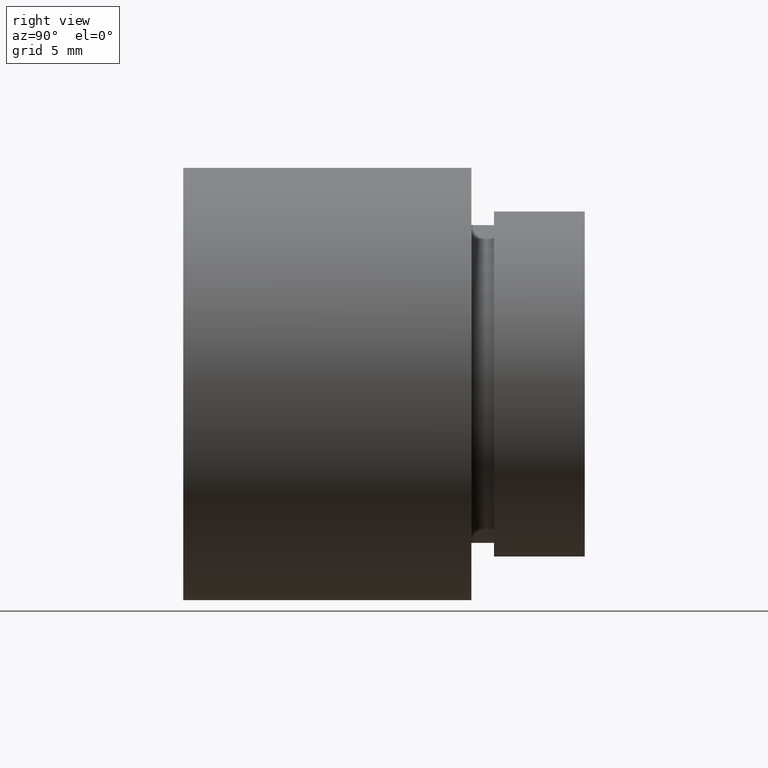
[diagram: clean part render]
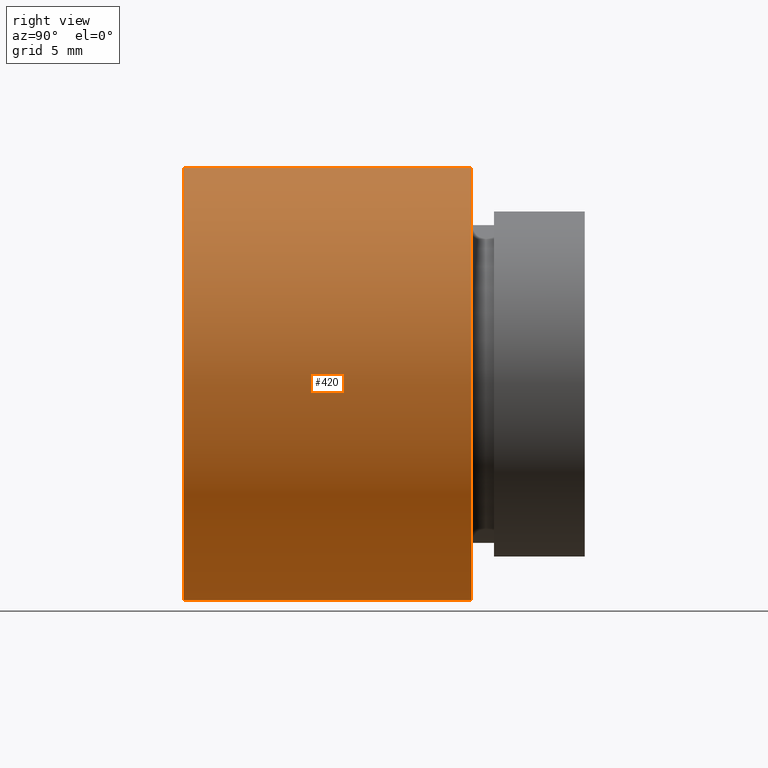
[diagram: same view with one face highlighted and labeled with its STEP entity id]
A machine part, right view. The second image highlights one B-rep face of the part: STEP entity #420.
In plain terms, the highlighted cylindrical surface (partial cylindrical patch) has radius 9.525 mm, axis along (-0, 1, -0).
Its self-contained STEP definition (entity closure, byte-faithful):
#33 = CIRCLE ( 'NONE', #156, 9.525000000000019900 ) ;
#43 = CARTESIAN_POINT ( 'NONE',  ( 0.0000000000000000000, 161.3761669434274500, 0.0000000000000000000 ) ) ;
#51 = DIRECTION ( 'NONE',  ( -0.0000000000000000000, 1.000000000000000000, -0.0000000000000000000 ) ) ;
#74 = FACE_OUTER_BOUND ( 'NONE', #496, .T. ) ;
#82 = CARTESIAN_POINT ( 'NONE',  ( 0.0000000000000000000, 12.69999999999998900, 9.525000000000019900 ) ) ;
#88 = CARTESIAN_POINT ( 'NONE',  ( 1.166476076187856400E-015, -2.775557561562891400E-014, -9.525000000000019900 ) ) ;
#101 = CARTESIAN_POINT ( 'NONE',  ( 1.166476076187856400E-015, 161.3761669434274500, -9.525000000000019900 ) ) ;
#105 = DIRECTION ( 'NONE',  ( 0.0000000000000000000, 0.0000000000000000000, 1.000000000000000000 ) ) ;
#142 = AXIS2_PLACEMENT_3D ( 'NONE', #551, #254, #605 ) ;
#144 = EDGE_CURVE ( 'NONE', #330, #282, #321, .T. ) ;
#147 = DIRECTION ( 'NONE',  ( -0.0000000000000000000, 1.000000000000000000, -0.0000000000000000000 ) ) ;
#154 = DIRECTION ( 'NONE',  ( -0.0000000000000000000, 1.000000000000000000, -0.0000000000000000000 ) ) ;
#156 = AXIS2_PLACEMENT_3D ( 'NONE', #242, #51, #105 ) ;
#176 = CIRCLE ( 'NONE', #142, 9.525000000000019900 ) ;
#231 = DIRECTION ( 'NONE',  ( 0.0000000000000000000, 0.0000000000000000000, 1.000000000000000000 ) ) ;
#242 = CARTESIAN_POINT ( 'NONE',  ( 0.0000000000000000000, 12.69999999999998900, 0.0000000000000000000 ) ) ;
#254 = DIRECTION ( 'NONE',  ( -0.0000000000000000000, 1.000000000000000000, -0.0000000000000000000 ) ) ;
#262 = EDGE_CURVE ( 'NONE', #330, #272, #176, .T. ) ;
#272 = VERTEX_POINT ( 'NONE', #88 ) ;
#282 = VERTEX_POINT ( 'NONE', #82 ) ;
#321 = LINE ( 'NONE', #453, #329 ) ;
#329 = VECTOR ( 'NONE', #154, 1000.000000000000000 ) ;
#330 = VERTEX_POINT ( 'NONE', #418 ) ;
#336 = CYLINDRICAL_SURFACE ( 'NONE', #616, 9.525000000000019900 ) ;
#384 = CARTESIAN_POINT ( 'NONE',  ( 1.166476076187856400E-015, 12.69999999999998900, -9.525000000000019900 ) ) ;
#386 = DIRECTION ( 'NONE',  ( -0.0000000000000000000, 1.000000000000000000, -0.0000000000000000000 ) ) ;
#412 = LINE ( 'NONE', #101, #429 ) ;
#418 = CARTESIAN_POINT ( 'NONE',  ( 0.0000000000000000000, -2.775557561562891400E-014, 9.525000000000019900 ) ) ;
#420 = ADVANCED_FACE ( 'NONE', ( #74 ), #336, .T. ) ;
#429 = VECTOR ( 'NONE', #147, 1000.000000000000000 ) ;
#432 = ORIENTED_EDGE ( 'NONE', *, *, #262, .T. ) ;
#434 = ORIENTED_EDGE ( 'NONE', *, *, #528, .F. ) ;
#453 = CARTESIAN_POINT ( 'NONE',  ( 0.0000000000000000000, 161.3761669434274500, 9.525000000000019900 ) ) ;
#468 = VERTEX_POINT ( 'NONE', #384 ) ;
#496 = EDGE_LOOP ( 'NONE', ( #432, #525, #434, #529 ) ) ;
#525 = ORIENTED_EDGE ( 'NONE', *, *, #550, .T. ) ;
#528 = EDGE_CURVE ( 'NONE', #282, #468, #33, .T. ) ;
#529 = ORIENTED_EDGE ( 'NONE', *, *, #144, .F. ) ;
#550 = EDGE_CURVE ( 'NONE', #272, #468, #412, .T. ) ;
#551 = CARTESIAN_POINT ( 'NONE',  ( 0.0000000000000000000, -2.775557561562891400E-014, 0.0000000000000000000 ) ) ;
#605 = DIRECTION ( 'NONE',  ( 0.0000000000000000000, 0.0000000000000000000, 1.000000000000000000 ) ) ;
#616 = AXIS2_PLACEMENT_3D ( 'NONE', #43, #386, #231 ) ;